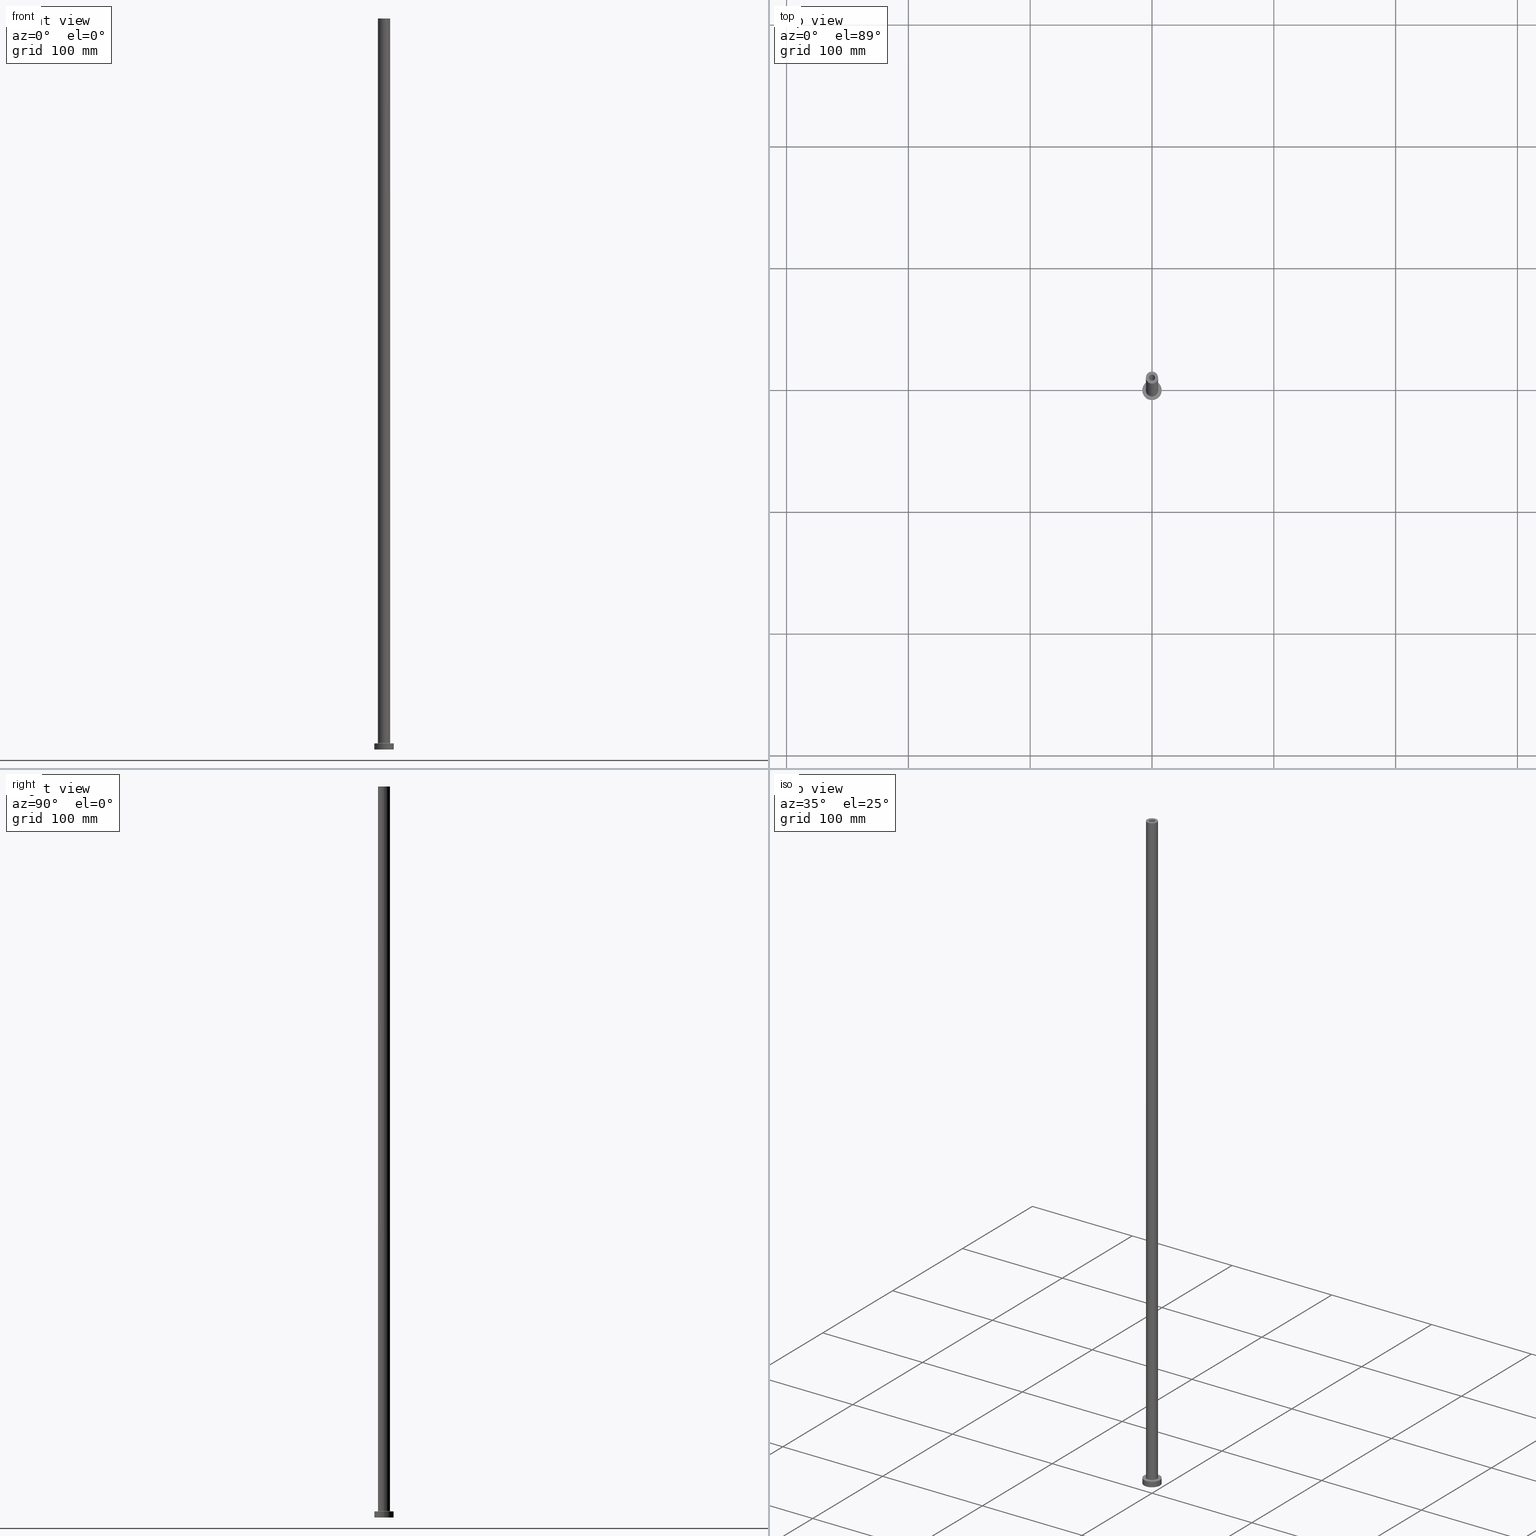
[diagram: canonical four-view strip — front | top / right | iso, engineering-drawing reading convention]
A machine part, canonical four-view strip (front | top / right | iso — engineering-drawing reading convention). The complete STEP part file that produces these views, byte-faithful:
ISO-10303-21;
HEADER;
FILE_DESCRIPTION (( 'STEP AP203' ),
    '1' );
FILE_NAME ('f21c.STEP',
    '2023-02-13T16:57:03',
    ( '' ),
    ( '' ),
    'SwSTEP 2.0',
    'SolidWorks 2019',
    '' );
FILE_SCHEMA (( 'CONFIG_CONTROL_DESIGN' ));
ENDSEC;

DATA;
#1 = LOCAL_TIME ( 17, 57, 3.000000000000000000, #313 ) ;
#2 = VERTEX_POINT ( 'NONE', #315 ) ;
#3 = CARTESIAN_POINT ( 'NONE',  ( 5.500000000000000000, 0.000000000000000000, 5.499999999999949374 ) ) ;
#4 = ORIENTED_EDGE ( 'NONE', *, *, #370, .F. ) ;
#5 = ADVANCED_FACE ( 'NONE', ( #229 ), #393, .T. ) ;
#6 = DIRECTION ( 'NONE',  ( 0.000000000000000000, 0.000000000000000000, -1.000000000000000000 ) ) ;
#7 = EDGE_LOOP ( 'NONE', ( #202, #41, #437, #139 ) ) ;
#8 = VERTEX_POINT ( 'NONE', #387 ) ;
#9 = DIRECTION ( 'NONE',  ( 0.000000000000000000, 0.000000000000000000, 1.000000000000000000 ) ) ;
#10 = CARTESIAN_POINT ( 'NONE',  ( 0.000000000000000000, 0.000000000000000000, 5.000000000000000000 ) ) ;
#11 = PERSON_AND_ORGANIZATION ( #74, #240 ) ;
#12 = DESIGN_CONTEXT ( 'detailed design', #58, 'design' ) ;
#13 = LINE ( 'NONE', #153, #203 ) ;
#14 = CIRCLE ( 'NONE', #81, 2.500000000000000000 ) ;
#15 = DIRECTION ( 'NONE',  ( 1.000000000000000000, 0.000000000000000000, 0.000000000000000000 ) ) ;
#16 = EDGE_LOOP ( 'NONE', ( #346, #277 ) ) ;
#17 = APPROVAL_ROLE ( '' ) ;
#18 = EDGE_CURVE ( 'NONE', #152, #137, #36, .T. ) ;
#19 = DIRECTION ( 'NONE',  ( 0.000000000000000000, 0.000000000000000000, -1.000000000000000000 ) ) ;
#20 =( NAMED_UNIT ( * ) PLANE_ANGLE_UNIT ( ) SI_UNIT ( $, .RADIAN. ) );
#21 = AXIS2_PLACEMENT_3D ( 'NONE', #433, #251, #148 ) ;
#22 = EDGE_LOOP ( 'NONE', ( #298, #128, #431, #322 ) ) ;
#23 = EDGE_CURVE ( 'NONE', #401, #8, #66, .T. ) ;
#24 = CARTESIAN_POINT ( 'NONE',  ( 8.000000000000000000, 9.797174393178825657E-16, 0.000000000000000000 ) ) ;
#25 = EDGE_CURVE ( 'NONE', #177, #108, #364, .T. ) ;
#26 = FACE_BOUND ( 'NONE', #16, .T. ) ;
#27 = CALENDAR_DATE ( 2023, 13, 2 ) ;
#28 = ADVANCED_FACE ( 'NONE', ( #339 ), #299, .F. ) ;
#29 = CARTESIAN_POINT ( 'NONE',  ( -5.500000000000000000, 6.735557395310442023E-16, 4.999999999999975131 ) ) ;
#30 = EDGE_CURVE ( 'NONE', #207, #167, #403, .T. ) ;
#31 = AXIS2_PLACEMENT_3D ( 'NONE', #70, #258, #159 ) ;
#32 = CC_DESIGN_DATE_AND_TIME_ASSIGNMENT ( #385, #171, ( #286 ) ) ;
#33 = AXIS2_PLACEMENT_3D ( 'NONE', #284, #42, #45 ) ;
#34 = DIRECTION ( 'NONE',  ( -1.000000000000000000, 0.000000000000000000, 0.000000000000000000 ) ) ;
#35 = CALENDAR_DATE ( 2023, 13, 2 ) ;
#36 = LINE ( 'NONE', #276, #214 ) ;
#37 = VERTEX_POINT ( 'NONE', #357 ) ;
#38 = FACE_OUTER_BOUND ( 'NONE', #170, .T. ) ;
#39 = AXIS2_PLACEMENT_3D ( 'NONE', #245, #166, #73 ) ;
#40 = APPROVAL_PERSON_ORGANIZATION ( #317, #291, #349 ) ;
#41 = ORIENTED_EDGE ( 'NONE', *, *, #243, .T. ) ;
#42 = DIRECTION ( 'NONE',  ( 0.000000000000000000, 0.000000000000000000, 1.000000000000000000 ) ) ;
#43 = ORIENTED_EDGE ( 'NONE', *, *, #243, .F. ) ;
#44 = EDGE_CURVE ( 'NONE', #8, #438, #447, .T. ) ;
#45 = DIRECTION ( 'NONE',  ( 1.000000000000000000, 0.000000000000000000, 0.000000000000000000 ) ) ;
#46 = AXIS2_PLACEMENT_3D ( 'NONE', #190, #107, #427 ) ;
#47 = ORIENTED_EDGE ( 'NONE', *, *, #23, .T. ) ;
#48 = AXIS2_PLACEMENT_3D ( 'NONE', #228, #379, #253 ) ;
#49 = DIRECTION ( 'NONE',  ( 0.000000000000000000, -1.000000000000000000, 0.000000000000000000 ) ) ;
#50 = ORIENTED_EDGE ( 'NONE', *, *, #221, .T. ) ;
#51 = COORDINATED_UNIVERSAL_TIME_OFFSET ( 1, 0, .AHEAD. ) ;
#52 = ADVANCED_FACE ( 'NONE', ( #38 ), #270, .F. ) ;
#53 = ADVANCED_FACE ( 'NONE', ( #172 ), #458, .F. ) ;
#54 = AXIS2_PLACEMENT_3D ( 'NONE', #55, #189, #15 ) ;
#55 = CARTESIAN_POINT ( 'NONE',  ( 0.000000000000000000, 0.000000000000000000, 0.000000000000000000 ) ) ;
#56 = CIRCLE ( 'NONE', #359, 2.649999999999999911 ) ;
#57 = PRODUCT_DEFINITION_FORMATION_WITH_SPECIFIED_SOURCE ( 'LIBOVOLN�', '', #356, .NOT_KNOWN. ) ;
#58 = APPLICATION_CONTEXT ( 'configuration controlled 3d designs of mechanical parts and assemblies' ) ;
#59 = DATE_TIME_ROLE ( 'creation_date' ) ;
#60 = CARTESIAN_POINT ( 'NONE',  ( -2.500000000000000000, 0.000000000000000000, 600.0000000000000000 ) ) ;
#61 = CARTESIAN_POINT ( 'NONE',  ( 2.500000000000000000, 3.061616997868383141E-16, 600.0000000000000000 ) ) ;
#62 = DIRECTION ( 'NONE',  ( -0.000000000000000000, -0.000000000000000000, -1.000000000000000000 ) ) ;
#63 = CIRCLE ( 'NONE', #174, 5.000000000000000000 ) ;
#64 = APPROVAL_STATUS ( 'not_yet_approved' ) ;
#65 = DATE_AND_TIME ( #35, #1 ) ;
#66 = CIRCLE ( 'NONE', #46, 2.500000000000000000 ) ;
#67 = DIRECTION ( 'NONE',  ( -0.000000000000000000, -0.000000000000000000, -1.000000000000000000 ) ) ;
#68 = ORIENTED_EDGE ( 'NONE', *, *, #180, .F. ) ;
#69 = APPROVAL_DATE_TIME ( #238, #394 ) ;
#70 = CARTESIAN_POINT ( 'NONE',  ( 0.000000000000000000, 0.000000000000000000, 5.000000000000000000 ) ) ;
#71 = ORIENTED_EDGE ( 'NONE', *, *, #308, .T. ) ;
#72 = CIRCLE ( 'NONE', #39, 5.000000000000000000 ) ;
#73 = DIRECTION ( 'NONE',  ( 1.000000000000000000, 0.000000000000000000, 0.000000000000000000 ) ) ;
#74 = PERSON ( 'NEUR�EN�', 'NEUR�EN�', 'NEUR�EN�', ('NEUR�EN�'), ('NEUR�EN�'), ('NEUR�EN�') ) ;
#75 = EDGE_LOOP ( 'NONE', ( #248, #209, #406, #50 ) ) ;
#76 = ORIENTED_EDGE ( 'NONE', *, *, #113, .F. ) ;
#77 = DIRECTION ( 'NONE',  ( 1.000000000000000000, 0.000000000000000000, 0.000000000000000000 ) ) ;
#78 = ORIENTED_EDGE ( 'NONE', *, *, #461, .F. ) ;
#79 = EDGE_CURVE ( 'NONE', #280, #207, #395, .T. ) ;
#80 = FACE_OUTER_BOUND ( 'NONE', #22, .T. ) ;
#81 = AXIS2_PLACEMENT_3D ( 'NONE', #316, #120, #398 ) ;
#82 = DIRECTION ( 'NONE',  ( -0.000000000000000000, -0.000000000000000000, -1.000000000000000000 ) ) ;
#83 = FACE_OUTER_BOUND ( 'NONE', #369, .T. ) ;
#84 = ADVANCED_FACE ( 'NONE', ( #140 ), #324, .T. ) ;
#85 = CLOSED_SHELL ( 'NONE', ( #28, #225, #106, #5, #89, #215, #124, #400, #84, #331, #52, #53, #390, #168 ) ) ;
#86 = AXIS2_PLACEMENT_3D ( 'NONE', #210, #314, #176 ) ;
#87 = APPLICATION_PROTOCOL_DEFINITION ( 'international standard', 'config_control_design', 1994, #133 ) ;
#88 = ORIENTED_EDGE ( 'NONE', *, *, #235, .F. ) ;
#89 = ADVANCED_FACE ( 'NONE', ( #319 ), #281, .T. ) ;
#90 = LINE ( 'NONE', #122, #347 ) ;
#91 = ORIENTED_EDGE ( 'NONE', *, *, #79, .F. ) ;
#92 = LINE ( 'NONE', #381, #285 ) ;
#93 = CC_DESIGN_PERSON_AND_ORGANIZATION_ASSIGNMENT ( #11, #94, ( #282 ) ) ;
#94 = PERSON_AND_ORGANIZATION_ROLE ( 'creator' ) ;
#95 = DIRECTION ( 'NONE',  ( 0.000000000000000000, 0.000000000000000000, 1.000000000000000000 ) ) ;
#96 = DIRECTION ( 'NONE',  ( 0.000000000000000000, 0.000000000000000000, 1.000000000000000000 ) ) ;
#97 = AXIS2_PLACEMENT_3D ( 'NONE', #193, #342, #130 ) ;
#98 = AXIS2_PLACEMENT_3D ( 'NONE', #343, #19, #419 ) ;
#99 = CARTESIAN_POINT ( 'NONE',  ( 0.000000000000000000, 0.000000000000000000, 554.9999999999998863 ) ) ;
#100 = DIRECTION ( 'NONE',  ( 1.000000000000000000, 0.000000000000000000, 0.000000000000000000 ) ) ;
#101 = DIRECTION ( 'NONE',  ( 0.000000000000000000, 0.000000000000000000, -1.000000000000000000 ) ) ;
#102 = EDGE_CURVE ( 'NONE', #37, #207, #297, .T. ) ;
#103 = VERTEX_POINT ( 'NONE', #372 ) ;
#104 = LOCAL_TIME ( 17, 57, 3.000000000000000000, #220 ) ;
#105 = ORIENTED_EDGE ( 'NONE', *, *, #268, .F. ) ;
#106 = ADVANCED_FACE ( 'NONE', ( #83 ), #217, .F. ) ;
#107 = DIRECTION ( 'NONE',  ( 0.000000000000000000, 0.000000000000000000, 1.000000000000000000 ) ) ;
#108 = VERTEX_POINT ( 'NONE', #409 ) ;
#109 = DIRECTION ( 'NONE',  ( 1.000000000000000000, 0.000000000000000000, 0.000000000000000000 ) ) ;
#110 = UNCERTAINTY_MEASURE_WITH_UNIT (LENGTH_MEASURE( 1.000000000000000082E-05 ), #222, 'distance_accuracy_value', 'NONE');
#111 = VECTOR ( 'NONE', #368, 1000.000000000000000 ) ;
#112 = ORIENTED_EDGE ( 'NONE', *, *, #456, .F. ) ;
#113 = EDGE_CURVE ( 'NONE', #177, #219, #13, .T. ) ;
#114 = FACE_BOUND ( 'NONE', #434, .T. ) ;
#115 = ORIENTED_EDGE ( 'NONE', *, *, #268, .T. ) ;
#116 = DIRECTION ( 'NONE',  ( -0.000000000000000000, -0.000000000000000000, -1.000000000000000000 ) ) ;
#117 = ADVANCED_BREP_SHAPE_REPRESENTATION ( 'f21c', ( #223, #262 ), #197 ) ;
#118 = DIRECTION ( 'NONE',  ( 1.000000000000000000, 0.000000000000000000, -0.000000000000000000 ) ) ;
#119 = ORIENTED_EDGE ( 'NONE', *, *, #44, .T. ) ;
#120 = DIRECTION ( 'NONE',  ( 0.000000000000000000, 0.000000000000000000, 1.000000000000000000 ) ) ;
#121 = CIRCLE ( 'NONE', #33, 2.500000000000000000 ) ;
#122 = CARTESIAN_POINT ( 'NONE',  ( 5.000000000000000000, 6.123233995736766282E-16, 600.0000000000000000 ) ) ;
#123 = DIRECTION ( 'NONE',  ( -1.000000000000000000, 0.000000000000000000, 0.000000000000000000 ) ) ;
#124 = ADVANCED_FACE ( 'NONE', ( #26, #163 ), #416, .T. ) ;
#125 = AXIS2_PLACEMENT_3D ( 'NONE', #418, #95, #230 ) ;
#126 = VERTEX_POINT ( 'NONE', #306 ) ;
#127 = CALENDAR_DATE ( 2023, 13, 2 ) ;
#128 = ORIENTED_EDGE ( 'NONE', *, *, #337, .T. ) ;
#129 = MECHANICAL_CONTEXT ( 'NONE', #133, 'mechanical' ) ;
#130 = DIRECTION ( 'NONE',  ( 1.000000000000000000, 0.000000000000000000, 0.000000000000000000 ) ) ;
#131 = FACE_OUTER_BOUND ( 'NONE', #75, .T. ) ;
#132 = CIRCLE ( 'NONE', #86, 8.000000000000000000 ) ;
#133 = APPLICATION_CONTEXT ( 'configuration controlled 3d designs of mechanical parts and assemblies' ) ;
#134 = PERSON_AND_ORGANIZATION_ROLE ( 'creator' ) ;
#135 = CC_DESIGN_PERSON_AND_ORGANIZATION_ASSIGNMENT ( #309, #348, ( #286 ) ) ;
#136 = CARTESIAN_POINT ( 'NONE',  ( 0.000000000000000000, 0.000000000000000000, 554.9999999999998863 ) ) ;
#137 = VERTEX_POINT ( 'NONE', #271 ) ;
#138 = CARTESIAN_POINT ( 'NONE',  ( 5.000000000000000000, 6.123233995736766282E-16, 5.499999999999949374 ) ) ;
#139 = ORIENTED_EDGE ( 'NONE', *, *, #255, .F. ) ;
#140 = FACE_OUTER_BOUND ( 'NONE', #157, .T. ) ;
#141 = DIRECTION ( 'NONE',  ( 0.000000000000000000, 0.000000000000000000, -1.000000000000000000 ) ) ;
#142 = LOCAL_TIME ( 17, 57, 3.000000000000000000, #200 ) ;
#143 = DIRECTION ( 'NONE',  ( -1.000000000000000000, 0.000000000000000000, 0.000000000000000000 ) ) ;
#144 = PRODUCT_RELATED_PRODUCT_CATEGORY ( 'detail', '', ( #356 ) ) ;
#145 = AXIS2_PLACEMENT_3D ( 'NONE', #411, #227, #302 ) ;
#146 = EDGE_LOOP ( 'NONE', ( #115, #288 ) ) ;
#147 = AXIS2_PLACEMENT_3D ( 'NONE', #154, #344, #338 ) ;
#148 = DIRECTION ( 'NONE',  ( 1.000000000000000000, 0.000000000000000000, 0.000000000000000000 ) ) ;
#149 = VERTEX_POINT ( 'NONE', #412 ) ;
#150 = ORIENTED_EDGE ( 'NONE', *, *, #337, .F. ) ;
#151 = FACE_OUTER_BOUND ( 'NONE', #442, .T. ) ;
#152 = VERTEX_POINT ( 'NONE', #300 ) ;
#153 = CARTESIAN_POINT ( 'NONE',  ( -8.000000000000000000, 0.000000000000000000, 5.000000000000000000 ) ) ;
#154 = CARTESIAN_POINT ( 'NONE',  ( 0.000000000000000000, 0.000000000000000000, 600.0000000000000000 ) ) ;
#155 = ORIENTED_EDGE ( 'NONE', *, *, #422, .T. ) ;
#156 = CARTESIAN_POINT ( 'NONE',  ( -2.500000000000000000, 0.000000000000000000, 600.0000000000000000 ) ) ;
#157 = EDGE_LOOP ( 'NONE', ( #295, #241, #332, #239 ) ) ;
#158 = DIRECTION ( 'NONE',  ( -0.000000000000000000, -0.000000000000000000, -1.000000000000000000 ) ) ;
#159 = DIRECTION ( 'NONE',  ( 1.000000000000000000, 0.000000000000000000, 0.000000000000000000 ) ) ;
#160 = DIRECTION ( 'NONE',  ( 1.000000000000000000, 0.000000000000000000, 0.000000000000000000 ) ) ;
#161 = AXIS2_PLACEMENT_3D ( 'NONE', #358, #237, #143 ) ;
#162 = ORIENTED_EDGE ( 'NONE', *, *, #435, .T. ) ;
#163 = FACE_OUTER_BOUND ( 'NONE', #244, .T. ) ;
#164 = EDGE_CURVE ( 'NONE', #207, #280, #63, .T. ) ;
#165 = AXIS2_PLACEMENT_3D ( 'NONE', #234, #231, #160 ) ;
#166 = DIRECTION ( 'NONE',  ( 0.000000000000000000, 0.000000000000000000, 1.000000000000000000 ) ) ;
#167 = VERTEX_POINT ( 'NONE', #29 ) ;
#168 = ADVANCED_FACE ( 'NONE', ( #310 ), #261, .F. ) ;
#169 = CARTESIAN_POINT ( 'NONE',  ( 0.000000000000000000, 0.000000000000000000, 0.000000000000000000 ) ) ;
#170 = EDGE_LOOP ( 'NONE', ( #183, #91, #428, #360 ) ) ;
#171 = DATE_TIME_ROLE ( 'classification_date' ) ;
#172 = FACE_OUTER_BOUND ( 'NONE', #242, .T. ) ;
#173 = EDGE_LOOP ( 'NONE', ( #68, #78 ) ) ;
#174 = AXIS2_PLACEMENT_3D ( 'NONE', #307, #96, #265 ) ;
#175 = ORIENTED_EDGE ( 'NONE', *, *, #181, .F. ) ;
#176 = DIRECTION ( 'NONE',  ( 1.000000000000000000, 0.000000000000000000, 0.000000000000000000 ) ) ;
#177 = VERTEX_POINT ( 'NONE', #199 ) ;
#178 = DIRECTION ( 'NONE',  ( 1.000000000000000000, 0.000000000000000000, 0.000000000000000000 ) ) ;
#179 = AXIS2_PLACEMENT_3D ( 'NONE', #384, #82, #213 ) ;
#180 = EDGE_CURVE ( 'NONE', #152, #149, #56, .T. ) ;
#181 = EDGE_CURVE ( 'NONE', #108, #177, #424, .T. ) ;
#182 = CALENDAR_DATE ( 2023, 13, 2 ) ;
#183 = ORIENTED_EDGE ( 'NONE', *, *, #30, .F. ) ;
#184 = EDGE_CURVE ( 'NONE', #137, #103, #432, .T. ) ;
#185 = DIRECTION ( 'NONE',  ( -0.000000000000000000, -0.000000000000000000, -1.000000000000000000 ) ) ;
#186 = APPROVAL_STATUS ( 'not_yet_approved' ) ;
#187 = ORIENTED_EDGE ( 'NONE', *, *, #259, .T. ) ;
#188 = DIRECTION ( 'NONE',  ( 0.000000000000000000, 0.000000000000000000, 1.000000000000000000 ) ) ;
#189 = DIRECTION ( 'NONE',  ( -0.000000000000000000, -0.000000000000000000, -1.000000000000000000 ) ) ;
#190 = CARTESIAN_POINT ( 'NONE',  ( 0.000000000000000000, 0.000000000000000000, 600.0000000000000000 ) ) ;
#191 = DATE_AND_TIME ( #226, #104 ) ;
#192 = EDGE_CURVE ( 'NONE', #108, #196, #92, .T. ) ;
#193 = CARTESIAN_POINT ( 'NONE',  ( 0.000000000000000000, 0.000000000000000000, 5.499999999999949374 ) ) ;
#194 = DIRECTION ( 'NONE',  ( 0.000000000000000000, 0.000000000000000000, 1.000000000000000000 ) ) ;
#195 = AXIS2_PLACEMENT_3D ( 'NONE', #206, #380, #377 ) ;
#196 = VERTEX_POINT ( 'NONE', #24 ) ;
#197 =( GEOMETRIC_REPRESENTATION_CONTEXT ( 3 ) GLOBAL_UNCERTAINTY_ASSIGNED_CONTEXT ( ( #110 ) ) GLOBAL_UNIT_ASSIGNED_CONTEXT ( ( #222, #20, #443 ) ) REPRESENTATION_CONTEXT ( 'NONE', 'WORKASPACE' ) );
#198 = SHAPE_DEFINITION_REPRESENTATION ( #392, #117 ) ;
#199 = CARTESIAN_POINT ( 'NONE',  ( -8.000000000000000000, 0.000000000000000000, 5.000000000000000000 ) ) ;
#200 = COORDINATED_UNIVERSAL_TIME_OFFSET ( 1, 0, .AHEAD. ) ;
#201 = PERSON_AND_ORGANIZATION ( #74, #240 ) ;
#202 = ORIENTED_EDGE ( 'NONE', *, *, #44, .F. ) ;
#203 = VECTOR ( 'NONE', #340, 1000.000000000000000 ) ;
#204 = FACE_OUTER_BOUND ( 'NONE', #334, .T. ) ;
#205 = ORIENTED_EDGE ( 'NONE', *, *, #221, .F. ) ;
#206 = CARTESIAN_POINT ( 'NONE',  ( -5.500000000000000000, 6.735557395310442023E-16, 5.499999999999949374 ) ) ;
#207 = VERTEX_POINT ( 'NONE', #450 ) ;
#208 = CIRCLE ( 'NONE', #232, 8.000000000000000000 ) ;
#209 = ORIENTED_EDGE ( 'NONE', *, *, #25, .F. ) ;
#210 = CARTESIAN_POINT ( 'NONE',  ( 0.000000000000000000, 0.000000000000000000, 0.000000000000000000 ) ) ;
#211 = CC_DESIGN_PERSON_AND_ORGANIZATION_ASSIGNMENT ( #273, #269, ( #57 ) ) ;
#212 = EDGE_LOOP ( 'NONE', ( #327, #318 ) ) ;
#213 = DIRECTION ( 'NONE',  ( -1.000000000000000000, 0.000000000000000000, 0.000000000000000000 ) ) ;
#214 = VECTOR ( 'NONE', #352, 1000.000000000000000 ) ;
#215 = ADVANCED_FACE ( 'NONE', ( #131 ), #233, .T. ) ;
#216 = DIRECTION ( 'NONE',  ( 0.000000000000000000, 0.000000000000000000, 1.000000000000000000 ) ) ;
#217 = TOROIDAL_SURFACE ( 'NONE', #326, 5.500000000000000000, 0.5000000000000000000 ) ;
#218 = DIRECTION ( 'NONE',  ( 0.000000000000000000, 0.000000000000000000, 1.000000000000000000 ) ) ;
#219 = VERTEX_POINT ( 'NONE', #365 ) ;
#220 = COORDINATED_UNIVERSAL_TIME_OFFSET ( 1, 0, .AHEAD. ) ;
#221 = EDGE_CURVE ( 'NONE', #219, #196, #208, .T. ) ;
#222 =( LENGTH_UNIT ( ) NAMED_UNIT ( * ) SI_UNIT ( .MILLI., .METRE. ) );
#223 = MANIFOLD_SOLID_BREP ( 'Odebrat vysunut�m4', #85 ) ;
#224 = AXIS2_PLACEMENT_3D ( 'NONE', #3, #49, #6 ) ;
#225 = ADVANCED_FACE ( 'NONE', ( #80 ), #455, .F. ) ;
#226 = CALENDAR_DATE ( 2023, 13, 2 ) ;
#227 = DIRECTION ( 'NONE',  ( 0.000000000000000000, 0.000000000000000000, -1.000000000000000000 ) ) ;
#228 = CARTESIAN_POINT ( 'NONE',  ( 0.000000000000000000, 0.000000000000000000, 554.9999999999998863 ) ) ;
#229 = FACE_OUTER_BOUND ( 'NONE', #362, .T. ) ;
#230 = DIRECTION ( 'NONE',  ( 1.000000000000000000, 0.000000000000000000, 0.000000000000000000 ) ) ;
#231 = DIRECTION ( 'NONE',  ( 0.000000000000000000, 0.000000000000000000, 1.000000000000000000 ) ) ;
#232 = AXIS2_PLACEMENT_3D ( 'NONE', #430, #218, #109 ) ;
#233 = CYLINDRICAL_SURFACE ( 'NONE', #179, 8.000000000000000000 ) ;
#234 = CARTESIAN_POINT ( 'NONE',  ( 0.000000000000000000, 0.000000000000000000, 5.000000000000000000 ) ) ;
#235 = EDGE_CURVE ( 'NONE', #280, #2, #272, .T. ) ;
#236 = CARTESIAN_POINT ( 'NONE',  ( 5.000000000000000000, 6.123233995736766282E-16, 600.0000000000000000 ) ) ;
#237 = DIRECTION ( 'NONE',  ( -0.000000000000000000, -0.000000000000000000, -1.000000000000000000 ) ) ;
#238 = DATE_AND_TIME ( #127, #279 ) ;
#239 = ORIENTED_EDGE ( 'NONE', *, *, #164, .T. ) ;
#240 = ORGANIZATION ( 'NEUR�EN�', 'NEUR�EN�', '' ) ;
#241 = ORIENTED_EDGE ( 'NONE', *, *, #422, .F. ) ;
#242 = EDGE_LOOP ( 'NONE', ( #150, #275, #454, #441 ) ) ;
#243 = EDGE_CURVE ( 'NONE', #8, #401, #121, .T. ) ;
#244 = EDGE_LOOP ( 'NONE', ( #329, #264 ) ) ;
#245 = CARTESIAN_POINT ( 'NONE',  ( 0.000000000000000000, 0.000000000000000000, 600.0000000000000000 ) ) ;
#246 = CIRCLE ( 'NONE', #54, 2.649999999999999911 ) ;
#247 = LOCAL_TIME ( 17, 57, 3.000000000000000000, #51 ) ;
#248 = ORIENTED_EDGE ( 'NONE', *, *, #192, .F. ) ;
#249 = FACE_BOUND ( 'NONE', #212, .T. ) ;
#250 = ORIENTED_EDGE ( 'NONE', *, *, #192, .T. ) ;
#251 = DIRECTION ( 'NONE',  ( -0.000000000000000000, -0.000000000000000000, -1.000000000000000000 ) ) ;
#252 = VECTOR ( 'NONE', #116, 1000.000000000000000 ) ;
#253 = DIRECTION ( 'NONE',  ( 1.000000000000000000, 0.000000000000000000, 0.000000000000000000 ) ) ;
#254 = ORIENTED_EDGE ( 'NONE', *, *, #308, .F. ) ;
#255 = EDGE_CURVE ( 'NONE', #438, #126, #14, .T. ) ;
#256 = DIRECTION ( 'NONE',  ( 1.000000000000000000, 0.000000000000000000, 0.000000000000000000 ) ) ;
#257 = APPLICATION_PROTOCOL_DEFINITION ( 'international standard', 'config_control_design', 1994, #58 ) ;
#258 = DIRECTION ( 'NONE',  ( 0.000000000000000000, 0.000000000000000000, 1.000000000000000000 ) ) ;
#259 = EDGE_CURVE ( 'NONE', #389, #37, #72, .T. ) ;
#260 = CC_DESIGN_PERSON_AND_ORGANIZATION_ASSIGNMENT ( #201, #134, ( #57 ) ) ;
#261 = CYLINDRICAL_SURFACE ( 'NONE', #98, 2.500000000000000000 ) ;
#262 = AXIS2_PLACEMENT_3D ( 'NONE', #448, #408, #445 ) ;
#263 = CC_DESIGN_APPROVAL ( #291, ( #286 ) ) ;
#264 = ORIENTED_EDGE ( 'NONE', *, *, #181, .T. ) ;
#265 = DIRECTION ( 'NONE',  ( 1.000000000000000000, 0.000000000000000000, 0.000000000000000000 ) ) ;
#266 = PERSON_AND_ORGANIZATION ( #74, #240 ) ;
#267 = DIRECTION ( 'NONE',  ( -1.000000000000000000, 0.000000000000000000, 0.000000000000000000 ) ) ;
#268 = EDGE_CURVE ( 'NONE', #126, #438, #446, .T. ) ;
#269 = PERSON_AND_ORGANIZATION_ROLE ( 'design_supplier' ) ;
#270 = TOROIDAL_SURFACE ( 'NONE', #97, 5.500000000000000000, 0.5000000000000000000 ) ;
#271 = CARTESIAN_POINT ( 'NONE',  ( -2.649999999999999911, 0.000000000000000000, 0.000000000000000000 ) ) ;
#272 = CIRCLE ( 'NONE', #224, 0.5000000000000004441 ) ;
#273 = PERSON_AND_ORGANIZATION ( #74, #240 ) ;
#274 = DIRECTION ( 'NONE',  ( 1.000000000000000000, 0.000000000000000000, -0.000000000000000000 ) ) ;
#275 = ORIENTED_EDGE ( 'NONE', *, *, #461, .T. ) ;
#276 = CARTESIAN_POINT ( 'NONE',  ( -2.649999999999999911, 0.000000000000000000, 562.4953318805773961 ) ) ;
#277 = ORIENTED_EDGE ( 'NONE', *, *, #294, .T. ) ;
#278 = AXIS2_PLACEMENT_3D ( 'NONE', #328, #363, #34 ) ;
#279 = LOCAL_TIME ( 17, 57, 3.000000000000000000, #301 ) ;
#280 = VERTEX_POINT ( 'NONE', #138 ) ;
#281 = CYLINDRICAL_SURFACE ( 'NONE', #383, 8.000000000000000000 ) ;
#282 = PRODUCT_DEFINITION ( 'NEZN�M�', '', #57, #12 ) ;
#283 = DIRECTION ( 'NONE',  ( 0.000000000000000000, 0.000000000000000000, 1.000000000000000000 ) ) ;
#284 = CARTESIAN_POINT ( 'NONE',  ( 0.000000000000000000, 0.000000000000000000, 600.0000000000000000 ) ) ;
#285 = VECTOR ( 'NONE', #62, 1000.000000000000000 ) ;
#286 = SECURITY_CLASSIFICATION ( '', '', #355 ) ;
#287 = FACE_BOUND ( 'NONE', #146, .T. ) ;
#288 = ORIENTED_EDGE ( 'NONE', *, *, #255, .T. ) ;
#289 = PLANE ( 'NONE',  #351 ) ;
#290 = ORIENTED_EDGE ( 'NONE', *, *, #79, .T. ) ;
#291 = APPROVAL ( #64, 'NEUR�EN�' ) ;
#292 = AXIS2_PLACEMENT_3D ( 'NONE', #415, #67, #391 ) ;
#293 = CARTESIAN_POINT ( 'NONE',  ( 2.500000000000000000, 3.061616997868383141E-16, 554.9999999999998863 ) ) ;
#294 = EDGE_CURVE ( 'NONE', #167, #2, #335, .T. ) ;
#295 = ORIENTED_EDGE ( 'NONE', *, *, #435, .F. ) ;
#296 = CIRCLE ( 'NONE', #405, 5.500000000000000000 ) ;
#297 = LINE ( 'NONE', #367, #252 ) ;
#298 = ORIENTED_EDGE ( 'NONE', *, *, #180, .T. ) ;
#299 = CYLINDRICAL_SURFACE ( 'NONE', #145, 2.500000000000000000 ) ;
#300 = CARTESIAN_POINT ( 'NONE',  ( -2.649999999999999911, 0.000000000000000000, 554.9999999999998863 ) ) ;
#301 = COORDINATED_UNIVERSAL_TIME_OFFSET ( 1, 0, .AHEAD. ) ;
#302 = DIRECTION ( 'NONE',  ( -1.000000000000000000, 0.000000000000000000, 0.000000000000000000 ) ) ;
#303 = DIRECTION ( 'NONE',  ( 1.000000000000000000, 0.000000000000000000, 0.000000000000000000 ) ) ;
#304 = APPROVAL_PERSON_ORGANIZATION ( #407, #345, #17 ) ;
#305 = DIRECTION ( 'NONE',  ( 0.000000000000000000, 0.000000000000000000, -1.000000000000000000 ) ) ;
#306 = CARTESIAN_POINT ( 'NONE',  ( -2.500000000000000000, 0.000000000000000000, 554.9999999999998863 ) ) ;
#307 = CARTESIAN_POINT ( 'NONE',  ( 0.000000000000000000, 0.000000000000000000, 5.499999999999949374 ) ) ;
#308 = EDGE_CURVE ( 'NONE', #196, #219, #132, .T. ) ;
#309 = PERSON_AND_ORGANIZATION ( #74, #240 ) ;
#310 = FACE_OUTER_BOUND ( 'NONE', #7, .T. ) ;
#311 = CIRCLE ( 'NONE', #147, 5.000000000000000000 ) ;
#312 = AXIS2_PLACEMENT_3D ( 'NONE', #402, #216, #178 ) ;
#313 = COORDINATED_UNIVERSAL_TIME_OFFSET ( 1, 0, .AHEAD. ) ;
#314 = DIRECTION ( 'NONE',  ( 0.000000000000000000, 0.000000000000000000, 1.000000000000000000 ) ) ;
#315 = CARTESIAN_POINT ( 'NONE',  ( 5.500000000000000000, 0.000000000000000000, 4.999999999999975131 ) ) ;
#316 = CARTESIAN_POINT ( 'NONE',  ( 0.000000000000000000, 0.000000000000000000, 554.9999999999998863 ) ) ;
#317 = PERSON_AND_ORGANIZATION ( #74, #240 ) ;
#318 = ORIENTED_EDGE ( 'NONE', *, *, #413, .F. ) ;
#319 = FACE_OUTER_BOUND ( 'NONE', #396, .T. ) ;
#320 = ORIENTED_EDGE ( 'NONE', *, *, #102, .F. ) ;
#321 = ORIENTED_EDGE ( 'NONE', *, *, #23, .F. ) ;
#322 = ORIENTED_EDGE ( 'NONE', *, *, #18, .F. ) ;
#323 = CARTESIAN_POINT ( 'NONE',  ( 0.000000000000000000, 0.000000000000000000, 600.0000000000000000 ) ) ;
#324 = CYLINDRICAL_SURFACE ( 'NONE', #161, 5.000000000000000000 ) ;
#325 = DIRECTION ( 'NONE',  ( -0.000000000000000000, -0.000000000000000000, -1.000000000000000000 ) ) ;
#326 = AXIS2_PLACEMENT_3D ( 'NONE', #333, #188, #256 ) ;
#327 = ORIENTED_EDGE ( 'NONE', *, *, #184, .F. ) ;
#328 = CARTESIAN_POINT ( 'NONE',  ( 0.000000000000000000, 0.000000000000000000, 562.4953318805773961 ) ) ;
#329 = ORIENTED_EDGE ( 'NONE', *, *, #25, .T. ) ;
#330 = DATE_AND_TIME ( #182, #247 ) ;
#331 = ADVANCED_FACE ( 'NONE', ( #114, #151 ), #361, .T. ) ;
#332 = ORIENTED_EDGE ( 'NONE', *, *, #102, .T. ) ;
#333 = CARTESIAN_POINT ( 'NONE',  ( 0.000000000000000000, 0.000000000000000000, 5.499999999999949374 ) ) ;
#334 = EDGE_LOOP ( 'NONE', ( #205, #254 ) ) ;
#335 = CIRCLE ( 'NONE', #21, 5.500000000000000000 ) ;
#336 = APPROVAL_PERSON_ORGANIZATION ( #341, #394, #376 ) ;
#337 = EDGE_CURVE ( 'NONE', #149, #103, #423, .T. ) ;
#338 = DIRECTION ( 'NONE',  ( 1.000000000000000000, 0.000000000000000000, 0.000000000000000000 ) ) ;
#339 = FACE_OUTER_BOUND ( 'NONE', #354, .T. ) ;
#340 = DIRECTION ( 'NONE',  ( -0.000000000000000000, -0.000000000000000000, -1.000000000000000000 ) ) ;
#341 = PERSON_AND_ORGANIZATION ( #74, #240 ) ;
#342 = DIRECTION ( 'NONE',  ( 0.000000000000000000, 0.000000000000000000, 1.000000000000000000 ) ) ;
#343 = CARTESIAN_POINT ( 'NONE',  ( 0.000000000000000000, 0.000000000000000000, 600.0000000000000000 ) ) ;
#344 = DIRECTION ( 'NONE',  ( 0.000000000000000000, 0.000000000000000000, 1.000000000000000000 ) ) ;
#345 = APPROVAL ( #410, 'NEUR�EN�' ) ;
#346 = ORIENTED_EDGE ( 'NONE', *, *, #370, .T. ) ;
#347 = VECTOR ( 'NONE', #158, 1000.000000000000000 ) ;
#348 = PERSON_AND_ORGANIZATION_ROLE ( 'classification_officer' ) ;
#349 = APPROVAL_ROLE ( '' ) ;
#350 = CARTESIAN_POINT ( 'NONE',  ( 0.000000000000000000, 0.000000000000000000, 0.000000000000000000 ) ) ;
#351 = AXIS2_PLACEMENT_3D ( 'NONE', #136, #388, #118 ) ;
#352 = DIRECTION ( 'NONE',  ( 0.000000000000000000, 0.000000000000000000, -1.000000000000000000 ) ) ;
#353 = PLANE ( 'NONE',  #451 ) ;
#354 = EDGE_LOOP ( 'NONE', ( #47, #119, #105, #112 ) ) ;
#355 = SECURITY_CLASSIFICATION_LEVEL ( 'unclassified' ) ;
#356 = PRODUCT ( 'f21c', 'f21c', '', ( #129 ) ) ;
#357 = CARTESIAN_POINT ( 'NONE',  ( -5.000000000000000000, 0.000000000000000000, 600.0000000000000000 ) ) ;
#358 = CARTESIAN_POINT ( 'NONE',  ( 0.000000000000000000, 0.000000000000000000, 600.0000000000000000 ) ) ;
#359 = AXIS2_PLACEMENT_3D ( 'NONE', #99, #378, #100 ) ;
#360 = ORIENTED_EDGE ( 'NONE', *, *, #294, .F. ) ;
#361 = PLANE ( 'NONE',  #397 ) ;
#362 = EDGE_LOOP ( 'NONE', ( #399, #162, #290, #320 ) ) ;
#363 = DIRECTION ( 'NONE',  ( 0.000000000000000000, 0.000000000000000000, -1.000000000000000000 ) ) ;
#364 = CIRCLE ( 'NONE', #31, 8.000000000000000000 ) ;
#365 = CARTESIAN_POINT ( 'NONE',  ( -8.000000000000000000, 0.000000000000000000, 0.000000000000000000 ) ) ;
#366 = AXIS2_PLACEMENT_3D ( 'NONE', #421, #194, #444 ) ;
#367 = CARTESIAN_POINT ( 'NONE',  ( -5.000000000000000000, 0.000000000000000000, 600.0000000000000000 ) ) ;
#368 = DIRECTION ( 'NONE',  ( 0.000000000000000000, 0.000000000000000000, -1.000000000000000000 ) ) ;
#369 = EDGE_LOOP ( 'NONE', ( #429, #459, #4, #88 ) ) ;
#370 = EDGE_CURVE ( 'NONE', #2, #167, #296, .T. ) ;
#371 = APPROVAL_DATE_TIME ( #191, #345 ) ;
#372 = CARTESIAN_POINT ( 'NONE',  ( 2.649999999999999911, 3.245314017740485962E-16, 0.000000000000000000 ) ) ;
#373 = AXIS2_PLACEMENT_3D ( 'NONE', #449, #141, #267 ) ;
#374 = LINE ( 'NONE', #156, #111 ) ;
#375 = CIRCLE ( 'NONE', #48, 2.649999999999999911 ) ;
#376 = APPROVAL_ROLE ( '' ) ;
#377 = DIRECTION ( 'NONE',  ( -1.000000000000000000, 1.224646799147351482E-16, 0.000000000000000000 ) ) ;
#378 = DIRECTION ( 'NONE',  ( 0.000000000000000000, 0.000000000000000000, 1.000000000000000000 ) ) ;
#379 = DIRECTION ( 'NONE',  ( 0.000000000000000000, 0.000000000000000000, 1.000000000000000000 ) ) ;
#380 = DIRECTION ( 'NONE',  ( 1.224646799147353207E-16, 1.000000000000000000, -0.000000000000000000 ) ) ;
#381 = CARTESIAN_POINT ( 'NONE',  ( 8.000000000000000000, 9.797174393178825657E-16, 5.000000000000000000 ) ) ;
#382 = DIRECTION ( 'NONE',  ( -0.000000000000000000, -0.000000000000000000, -1.000000000000000000 ) ) ;
#383 = AXIS2_PLACEMENT_3D ( 'NONE', #10, #185, #123 ) ;
#384 = CARTESIAN_POINT ( 'NONE',  ( 0.000000000000000000, 0.000000000000000000, 5.000000000000000000 ) ) ;
#385 = DATE_AND_TIME ( #27, #142 ) ;
#386 = CC_DESIGN_DATE_AND_TIME_ASSIGNMENT ( #330, #59, ( #282 ) ) ;
#387 = CARTESIAN_POINT ( 'NONE',  ( 2.500000000000000000, 3.061616997868383141E-16, 600.0000000000000000 ) ) ;
#388 = DIRECTION ( 'NONE',  ( 0.000000000000000000, 0.000000000000000000, 1.000000000000000000 ) ) ;
#389 = VERTEX_POINT ( 'NONE', #236 ) ;
#390 = ADVANCED_FACE ( 'NONE', ( #287, #436 ), #289, .F. ) ;
#391 = DIRECTION ( 'NONE',  ( -1.000000000000000000, 0.000000000000000000, 0.000000000000000000 ) ) ;
#392 = PRODUCT_DEFINITION_SHAPE ( 'NONE', 'NONE',  #282 ) ;
#393 = CYLINDRICAL_SURFACE ( 'NONE', #292, 5.000000000000000000 ) ;
#394 = APPROVAL ( #186, 'NEUR�EN�' ) ;
#395 = CIRCLE ( 'NONE', #125, 5.000000000000000000 ) ;
#396 = EDGE_LOOP ( 'NONE', ( #175, #250, #71, #76 ) ) ;
#397 = AXIS2_PLACEMENT_3D ( 'NONE', #323, #9, #274 ) ;
#398 = DIRECTION ( 'NONE',  ( 1.000000000000000000, 0.000000000000000000, 0.000000000000000000 ) ) ;
#399 = ORIENTED_EDGE ( 'NONE', *, *, #259, .F. ) ;
#400 = ADVANCED_FACE ( 'NONE', ( #249, #204 ), #353, .F. ) ;
#401 = VERTEX_POINT ( 'NONE', #60 ) ;
#402 = CARTESIAN_POINT ( 'NONE',  ( 0.000000000000000000, 0.000000000000000000, 554.9999999999998863 ) ) ;
#403 = CIRCLE ( 'NONE', #195, 0.5000000000000004441 ) ;
#404 = CARTESIAN_POINT ( 'NONE',  ( 2.649999999999999911, 3.245314017740485962E-16, 562.4953318805773961 ) ) ;
#405 = AXIS2_PLACEMENT_3D ( 'NONE', #453, #325, #77 ) ;
#406 = ORIENTED_EDGE ( 'NONE', *, *, #113, .T. ) ;
#407 = PERSON_AND_ORGANIZATION ( #74, #240 ) ;
#408 = DIRECTION ( 'NONE',  ( 0.000000000000000000, 0.000000000000000000, 1.000000000000000000 ) ) ;
#409 = CARTESIAN_POINT ( 'NONE',  ( 8.000000000000000000, 9.797174393178825657E-16, 5.000000000000000000 ) ) ;
#410 = APPROVAL_STATUS ( 'not_yet_approved' ) ;
#411 = CARTESIAN_POINT ( 'NONE',  ( 0.000000000000000000, 0.000000000000000000, 600.0000000000000000 ) ) ;
#412 = CARTESIAN_POINT ( 'NONE',  ( 2.649999999999999911, 3.245314017740485962E-16, 554.9999999999998863 ) ) ;
#413 = EDGE_CURVE ( 'NONE', #103, #137, #246, .T. ) ;
#414 = DIRECTION ( 'NONE',  ( 1.000000000000000000, 0.000000000000000000, -0.000000000000000000 ) ) ;
#415 = CARTESIAN_POINT ( 'NONE',  ( 0.000000000000000000, 0.000000000000000000, 600.0000000000000000 ) ) ;
#416 = PLANE ( 'NONE',  #366 ) ;
#417 = PERSON_AND_ORGANIZATION_ROLE ( 'design_owner' ) ;
#418 = CARTESIAN_POINT ( 'NONE',  ( 0.000000000000000000, 0.000000000000000000, 5.499999999999949374 ) ) ;
#419 = DIRECTION ( 'NONE',  ( -1.000000000000000000, 0.000000000000000000, 0.000000000000000000 ) ) ;
#420 = AXIS2_PLACEMENT_3D ( 'NONE', #350, #382, #303 ) ;
#421 = CARTESIAN_POINT ( 'NONE',  ( 0.000000000000000000, 0.000000000000000000, 5.000000000000000000 ) ) ;
#422 = EDGE_CURVE ( 'NONE', #37, #389, #311, .T. ) ;
#423 = LINE ( 'NONE', #404, #439 ) ;
#424 = CIRCLE ( 'NONE', #165, 8.000000000000000000 ) ;
#425 = CC_DESIGN_PERSON_AND_ORGANIZATION_ASSIGNMENT ( #266, #417, ( #356 ) ) ;
#426 = CC_DESIGN_SECURITY_CLASSIFICATION ( #286, ( #57 ) ) ;
#427 = DIRECTION ( 'NONE',  ( 1.000000000000000000, 0.000000000000000000, 0.000000000000000000 ) ) ;
#428 = ORIENTED_EDGE ( 'NONE', *, *, #235, .T. ) ;
#429 = ORIENTED_EDGE ( 'NONE', *, *, #164, .F. ) ;
#430 = CARTESIAN_POINT ( 'NONE',  ( 0.000000000000000000, 0.000000000000000000, 0.000000000000000000 ) ) ;
#431 = ORIENTED_EDGE ( 'NONE', *, *, #413, .T. ) ;
#432 = CIRCLE ( 'NONE', #420, 2.649999999999999911 ) ;
#433 = CARTESIAN_POINT ( 'NONE',  ( 0.000000000000000000, 0.000000000000000000, 5.000000000000000000 ) ) ;
#434 = EDGE_LOOP ( 'NONE', ( #321, #43 ) ) ;
#435 = EDGE_CURVE ( 'NONE', #389, #280, #90, .T. ) ;
#436 = FACE_OUTER_BOUND ( 'NONE', #173, .T. ) ;
#437 = ORIENTED_EDGE ( 'NONE', *, *, #456, .T. ) ;
#438 = VERTEX_POINT ( 'NONE', #293 ) ;
#439 = VECTOR ( 'NONE', #101, 1000.000000000000000 ) ;
#440 = CC_DESIGN_APPROVAL ( #394, ( #57 ) ) ;
#441 = ORIENTED_EDGE ( 'NONE', *, *, #184, .T. ) ;
#442 = EDGE_LOOP ( 'NONE', ( #155, #187 ) ) ;
#443 =( NAMED_UNIT ( * ) SI_UNIT ( $, .STERADIAN. ) SOLID_ANGLE_UNIT ( ) );
#444 = DIRECTION ( 'NONE',  ( 1.000000000000000000, 0.000000000000000000, -0.000000000000000000 ) ) ;
#445 = DIRECTION ( 'NONE',  ( 1.000000000000000000, 0.000000000000000000, 0.000000000000000000 ) ) ;
#446 = CIRCLE ( 'NONE', #312, 2.500000000000000000 ) ;
#447 = LINE ( 'NONE', #61, #457 ) ;
#448 = CARTESIAN_POINT ( 'NONE',  ( 0.000000000000000000, 0.000000000000000000, 0.000000000000000000 ) ) ;
#449 = CARTESIAN_POINT ( 'NONE',  ( 0.000000000000000000, 0.000000000000000000, 562.4953318805773961 ) ) ;
#450 = CARTESIAN_POINT ( 'NONE',  ( -5.000000000000000000, 0.000000000000000000, 5.499999999999949374 ) ) ;
#451 = AXIS2_PLACEMENT_3D ( 'NONE', #169, #283, #414 ) ;
#452 = APPROVAL_DATE_TIME ( #65, #291 ) ;
#453 = CARTESIAN_POINT ( 'NONE',  ( 0.000000000000000000, 0.000000000000000000, 5.000000000000000000 ) ) ;
#454 = ORIENTED_EDGE ( 'NONE', *, *, #18, .T. ) ;
#455 = CYLINDRICAL_SURFACE ( 'NONE', #278, 2.649999999999999911 ) ;
#456 = EDGE_CURVE ( 'NONE', #401, #126, #374, .T. ) ;
#457 = VECTOR ( 'NONE', #305, 1000.000000000000000 ) ;
#458 = CYLINDRICAL_SURFACE ( 'NONE', #373, 2.649999999999999911 ) ;
#459 = ORIENTED_EDGE ( 'NONE', *, *, #30, .T. ) ;
#460 = CC_DESIGN_APPROVAL ( #345, ( #282 ) ) ;
#461 = EDGE_CURVE ( 'NONE', #149, #152, #375, .T. ) ;
ENDSEC;
END-ISO-10303-21;
